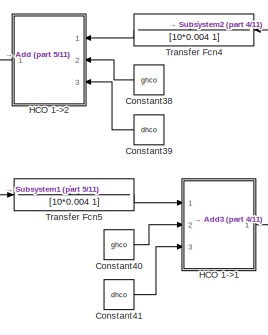
[diagram: root canvas - part 1/11, top center region]
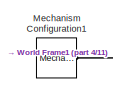
[diagram: root canvas - part 2/11, top right region]
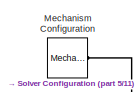
[diagram: root canvas - part 3/11, top left region]
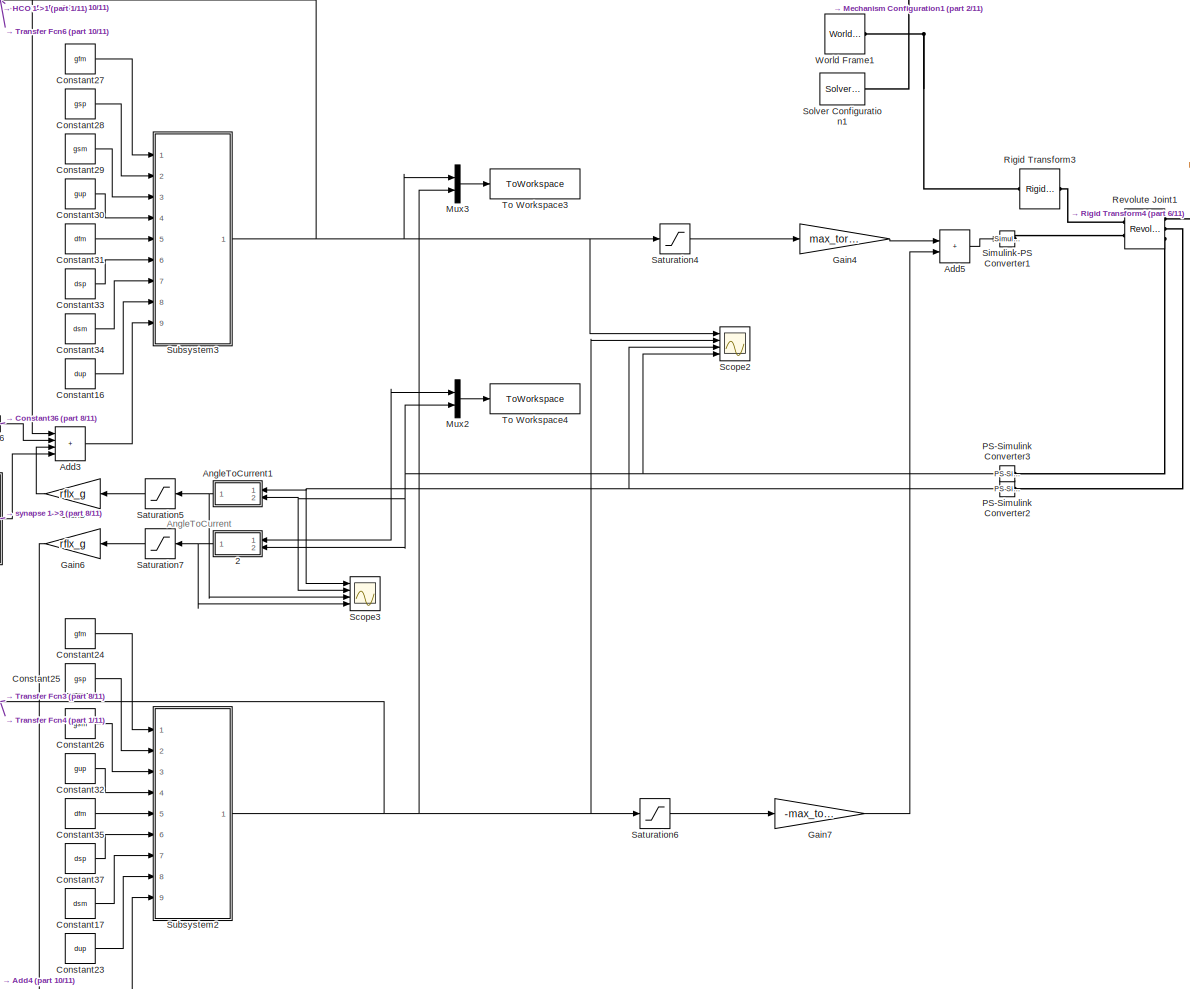
[diagram: root canvas - part 4/11, middle right region]
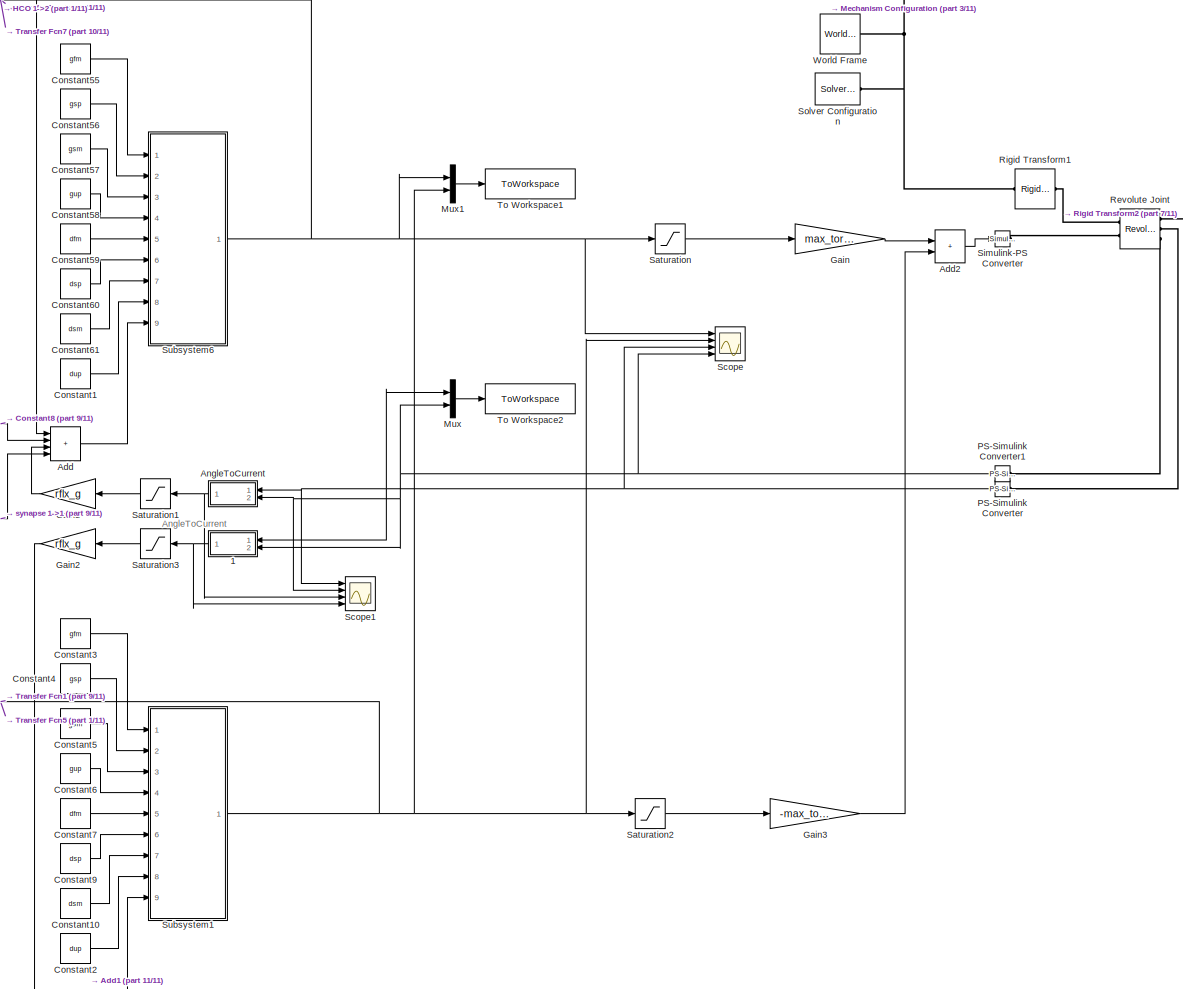
[diagram: root canvas - part 5/11, middle left region]
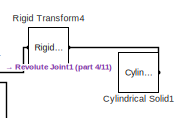
[diagram: root canvas - part 6/11, middle right region]
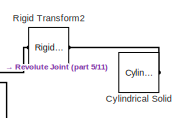
[diagram: root canvas - part 7/11, central region]
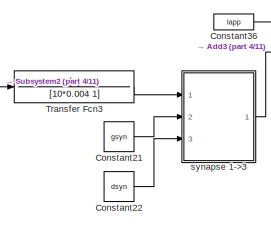
[diagram: root canvas - part 8/11, central region]
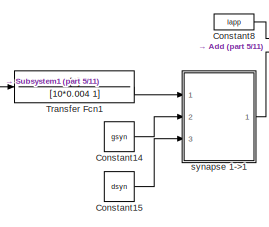
[diagram: root canvas - part 9/11, middle left region]
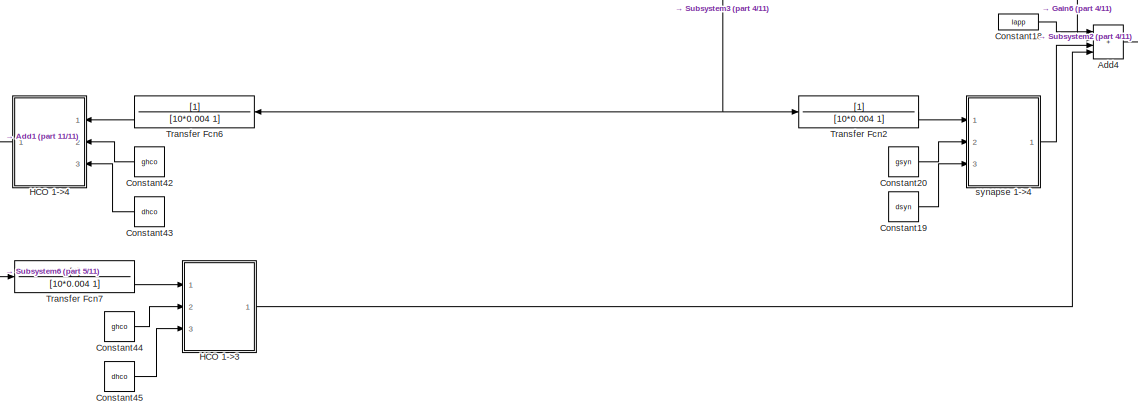
[diagram: root canvas - part 10/11, bottom center region]
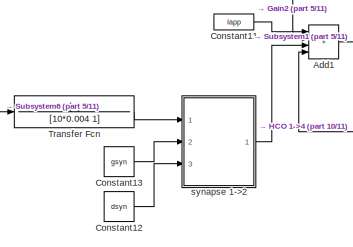
[diagram: root canvas - part 11/11, bottom left region]
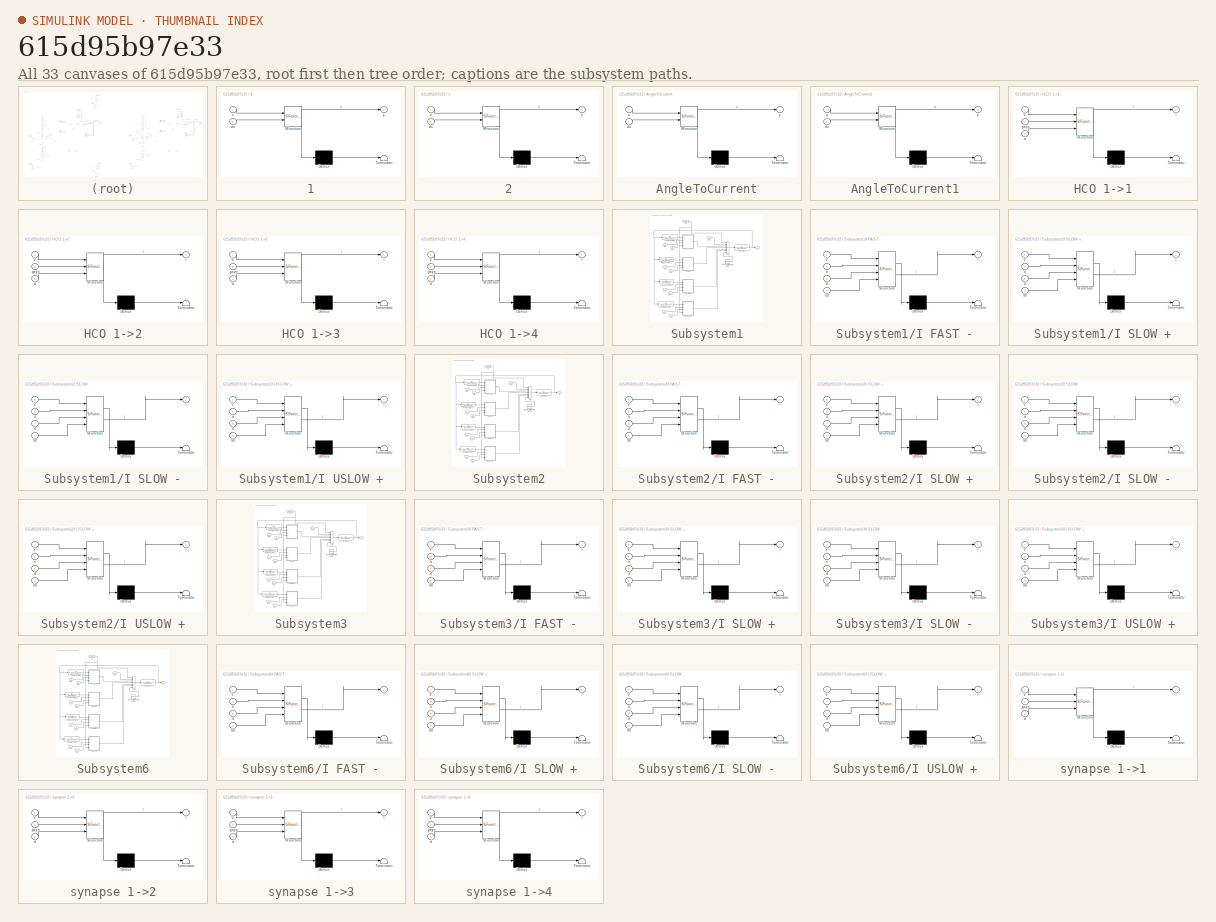
[diagram: thumbnail index - all 33 canvases of the model, root first then tree order]
MODEL slx_615d95b97e33
KIND model
CONFIG AbsTol = auto
CONFIG EnableMultiTasking = off
CONFIG FixedStep = auto
CONFIG MaxStep = auto
CONFIG MinStep = auto
CONFIG RelTol = 1e-3
CONFIG SampleTimeConstraint = Unconstrained
CONFIG SolverName = VariableStepAuto
CONFIG StartTime = 0.0
CONFIG StopTime = 20.0
BLOCK [SubSystem] 1
  ErrorFcn = Stateflow.Translate.translate
  NameLocation = left
  PermitHierarchicalResolution = ExplicitOnly
  Ports = [2, 1]
  RequestExecContextInheritance = off
  SFBlockType = MATLAB Function
  TreatAsAtomicUnit = on
BLOCK [Demux] 1/ Demux 
  Outputs = 1
  Ports = [1, 1]
BLOCK [S-Function] 1/ SFunction 
  EnableBusSupport = on
  FunctionName = sf_sfun
  PortCounts = [2 2]
  Ports = [2, 2]
  SFcnIsStateOwnerBlock = off
  SFunctionDeploymentMode = off
  Tag = Stateflow S-Function 6
BLOCK [Terminator] 1/ Terminator 
BLOCK [Inport] 1/du
  Port = 2
BLOCK [Inport] 1/u
BLOCK [Outport] 1/y
BLOCK [SubSystem] 2
  ErrorFcn = Stateflow.Translate.translate
  NameLocation = left
  PermitHierarchicalResolution = ExplicitOnly
  Ports = [2, 1]
  RequestExecContextInheritance = off
  SFBlockType = MATLAB Function
  TreatAsAtomicUnit = on
BLOCK [Demux] 2/ Demux 
  Outputs = 1
  Ports = [1, 1]
BLOCK [S-Function] 2/ SFunction 
  EnableBusSupport = on
  FunctionName = sf_sfun
  PortCounts = [2 2]
  Ports = [2, 2]
  SFcnIsStateOwnerBlock = off
  SFunctionDeploymentMode = off
  Tag = Stateflow S-Function 7
BLOCK [Terminator] 2/ Terminator 
BLOCK [Inport] 2/du
  Port = 2
BLOCK [Inport] 2/u
BLOCK [Outport] 2/y
BLOCK [Sum] Add
  IconShape = rectangular
  Inputs = ++++
  Ports = [4, 1]
BLOCK [Sum] Add1
  IconShape = rectangular
  Inputs = ++++
  Ports = [4, 1]
BLOCK [Sum] Add2
  IconShape = rectangular
  Ports = [2, 1]
BLOCK [Sum] Add3
  IconShape = rectangular
  Inputs = ++++
  Ports = [4, 1]
BLOCK [Sum] Add4
  IconShape = rectangular
  Inputs = ++++
  Ports = [4, 1]
BLOCK [Sum] Add5
  IconShape = rectangular
  Ports = [2, 1]
BLOCK [SubSystem] AngleToCurrent
  ErrorFcn = Stateflow.Translate.translate
  NameLocation = top
  PermitHierarchicalResolution = ExplicitOnly
  Ports = [2, 1]
  RequestExecContextInheritance = off
  SFBlockType = MATLAB Function
  TreatAsAtomicUnit = on
BLOCK [Demux] AngleToCurrent/ Demux 
  Outputs = 1
  Ports = [1, 1]
BLOCK [S-Function] AngleToCurrent/ SFunction 
  EnableBusSupport = on
  FunctionName = sf_sfun
  PortCounts = [2 2]
  Ports = [2, 2]
  SFcnIsStateOwnerBlock = off
  SFunctionDeploymentMode = off
  Tag = Stateflow S-Function 11
BLOCK [Terminator] AngleToCurrent/ Terminator 
BLOCK [Inport] AngleToCurrent/du
  Port = 2
BLOCK [Inport] AngleToCurrent/u
BLOCK [Outport] AngleToCurrent/y
BLOCK [SubSystem] AngleToCurrent1
  ErrorFcn = Stateflow.Translate.translate
  NameLocation = top
  PermitHierarchicalResolution = ExplicitOnly
  Ports = [2, 1]
  RequestExecContextInheritance = off
  SFBlockType = MATLAB Function
  TreatAsAtomicUnit = on
BLOCK [Demux] AngleToCurrent1/ Demux 
  Outputs = 1
  Ports = [1, 1]
BLOCK [S-Function] AngleToCurrent1/ SFunction 
  EnableBusSupport = on
  FunctionName = sf_sfun
  PortCounts = [2 2]
  Ports = [2, 2]
  SFcnIsStateOwnerBlock = off
  SFunctionDeploymentMode = off
  Tag = Stateflow S-Function 8
BLOCK [Terminator] AngleToCurrent1/ Terminator 
BLOCK [Inport] AngleToCurrent1/du
  Port = 2
BLOCK [Inport] AngleToCurrent1/u
BLOCK [Outport] AngleToCurrent1/y
BLOCK [Constant] Constant1
  Value = dup
BLOCK [Constant] Constant10
  Value = dsm
BLOCK [Constant] Constant11
  Value = Iapp
BLOCK [Constant] Constant12
  Value = dsyn
BLOCK [Constant] Constant13
  Value = gsyn
BLOCK [Constant] Constant14
  Value = gsyn
BLOCK [Constant] Constant15
  Value = dsyn
BLOCK [Constant] Constant16
  Value = dup
BLOCK [Constant] Constant17
  Value = dsm
BLOCK [Constant] Constant18
  Value = Iapp
BLOCK [Constant] Constant19
  Value = dsyn
BLOCK [Constant] Constant2
  Value = dup
BLOCK [Constant] Constant20
  Value = gsyn
BLOCK [Constant] Constant21
  Value = gsyn
BLOCK [Constant] Constant22
  Value = dsyn
BLOCK [Constant] Constant23
  Value = dup
BLOCK [Constant] Constant24
  Value = gfm
BLOCK [Constant] Constant25
  Value = gsp
BLOCK [Constant] Constant26
  Value = gsm
BLOCK [Constant] Constant27
  Value = gfm
BLOCK [Constant] Constant28
  Value = gsp
BLOCK [Constant] Constant29
  Value = gsm
BLOCK [Constant] Constant3
  Value = gfm
BLOCK [Constant] Constant30
  Value = gup
BLOCK [Constant] Constant31
  Value = dfm
BLOCK [Constant] Constant32
  Value = gup
BLOCK [Constant] Constant33
  Value = dsp
BLOCK [Constant] Constant34
  Value = dsm
BLOCK [Constant] Constant35
  Value = dfm
BLOCK [Constant] Constant36
  Value = Iapp
BLOCK [Constant] Constant37
  Value = dsp
BLOCK [Constant] Constant38
  Value = ghco
BLOCK [Constant] Constant39
  Value = dhco
BLOCK [Constant] Constant4
  Value = gsp
BLOCK [Constant] Constant40
  Value = ghco
BLOCK [Constant] Constant41
  Value = dhco
BLOCK [Constant] Constant42
  Value = ghco
BLOCK [Constant] Constant43
  Value = dhco
BLOCK [Constant] Constant44
  Value = ghco
BLOCK [Constant] Constant45
  Value = dhco
BLOCK [Constant] Constant5
  Value = gsm
BLOCK [Constant] Constant55
  Value = gfm
BLOCK [Constant] Constant56
  Value = gsp
BLOCK [Constant] Constant57
  Value = gsm
BLOCK [Constant] Constant58
  Value = gup
BLOCK [Constant] Constant59
  Value = dfm
BLOCK [Constant] Constant6
  Value = gup
BLOCK [Constant] Constant60
  Value = dsp
BLOCK [Constant] Constant61
  Value = dsm
BLOCK [Constant] Constant7
  Value = dfm
BLOCK [Constant] Constant8
  Value = Iapp
BLOCK [Constant] Constant9
  Value = dsp
BLOCK [Reference] Cylindrical Solid  REF=sm_lib/Body Elements/Cylindrical Solid
  Ports = [0, 0, 0, 0, 0, 0, 1]
  SourceBlock = sm_lib/Body Elements/Cylindrical Solid
  SourceProductBaseCode = MS
  SourceType = Cylindrical Solid
BLOCK [Reference] Cylindrical Solid1  REF=sm_lib/Body Elements/Cylindrical Solid
  Ports = [0, 0, 0, 0, 0, 0, 1]
  SourceBlock = sm_lib/Body Elements/Cylindrical Solid
  SourceProductBaseCode = MS
  SourceType = Cylindrical Solid
BLOCK [Gain] Gain
  Gain = max_torque
BLOCK [Gain] Gain1
  Gain = rflx_g
BLOCK [Gain] Gain2
  Gain = rflx_g
BLOCK [Gain] Gain3
  Gain = -max_torque
BLOCK [Gain] Gain4
  Gain = max_torque
BLOCK [Gain] Gain5
  Gain = rflx_g
BLOCK [Gain] Gain6
  Gain = rflx_g
BLOCK [Gain] Gain7
  Gain = -max_torque
BLOCK [SubSystem] HCO 1->1
  ErrorFcn = Stateflow.Translate.translate
  PermitHierarchicalResolution = ExplicitOnly
  Ports = [3, 1]
  RequestExecContextInheritance = off
  SFBlockType = MATLAB Function
  TreatAsAtomicUnit = on
BLOCK [Demux] HCO 1->1/ Demux 
  Outputs = 1
  Ports = [1, 1]
BLOCK [S-Function] HCO 1->1/ SFunction 
  EnableBusSupport = on
  FunctionName = sf_sfun
  PortCounts = [3 2]
  Ports = [3, 2]
  SFcnIsStateOwnerBlock = off
  SFunctionDeploymentMode = off
  Tag = Stateflow S-Function 22
BLOCK [Terminator] HCO 1->1/ Terminator 
BLOCK [Outport] HCO 1->1/I
BLOCK [Inport] HCO 1->1/V
BLOCK [Inport] HCO 1->1/d
  Port = 3
BLOCK [Inport] HCO 1->1/gsyn
  Port = 2
BLOCK [SubSystem] HCO 1->2
  ErrorFcn = Stateflow.Translate.translate
  PermitHierarchicalResolution = ExplicitOnly
  Ports = [3, 1]
  RequestExecContextInheritance = off
  SFBlockType = MATLAB Function
  TreatAsAtomicUnit = on
BLOCK [Demux] HCO 1->2/ Demux 
  Outputs = 1
  Ports = [1, 1]
BLOCK [S-Function] HCO 1->2/ SFunction 
  EnableBusSupport = on
  FunctionName = sf_sfun
  PortCounts = [3 2]
  Ports = [3, 2]
  SFcnIsStateOwnerBlock = off
  SFunctionDeploymentMode = off
  Tag = Stateflow S-Function 21
BLOCK [Terminator] HCO 1->2/ Terminator 
BLOCK [Outport] HCO 1->2/I
BLOCK [Inport] HCO 1->2/V
BLOCK [Inport] HCO 1->2/d
  Port = 3
BLOCK [Inport] HCO 1->2/gsyn
  Port = 2
BLOCK [SubSystem] HCO 1->3
  ErrorFcn = Stateflow.Translate.translate
  PermitHierarchicalResolution = ExplicitOnly
  Ports = [3, 1]
  RequestExecContextInheritance = off
  SFBlockType = MATLAB Function
  TreatAsAtomicUnit = on
BLOCK [Demux] HCO 1->3/ Demux 
  Outputs = 1
  Ports = [1, 1]
BLOCK [S-Function] HCO 1->3/ SFunction 
  EnableBusSupport = on
  FunctionName = sf_sfun
  PortCounts = [3 2]
  Ports = [3, 2]
  SFcnIsStateOwnerBlock = off
  SFunctionDeploymentMode = off
  Tag = Stateflow S-Function 23
BLOCK [Terminator] HCO 1->3/ Terminator 
BLOCK [Outport] HCO 1->3/I
BLOCK [Inport] HCO 1->3/V
BLOCK [Inport] HCO 1->3/d
  Port = 3
BLOCK [Inport] HCO 1->3/gsyn
  Port = 2
BLOCK [SubSystem] HCO 1->4
  ErrorFcn = Stateflow.Translate.translate
  PermitHierarchicalResolution = ExplicitOnly
  Ports = [3, 1]
  RequestExecContextInheritance = off
  SFBlockType = MATLAB Function
  TreatAsAtomicUnit = on
BLOCK [Demux] HCO 1->4/ Demux 
  Outputs = 1
  Ports = [1, 1]
BLOCK [S-Function] HCO 1->4/ SFunction 
  EnableBusSupport = on
  FunctionName = sf_sfun
  PortCounts = [3 2]
  Ports = [3, 2]
  SFcnIsStateOwnerBlock = off
  SFunctionDeploymentMode = off
  Tag = Stateflow S-Function 24
BLOCK [Terminator] HCO 1->4/ Terminator 
BLOCK [Outport] HCO 1->4/I
BLOCK [Inport] HCO 1->4/V
BLOCK [Inport] HCO 1->4/d
  Port = 3
BLOCK [Inport] HCO 1->4/gsyn
  Port = 2
BLOCK [Reference] Mechanism Configuration  REF=sm_lib/Utilities/Mechanism
Configuration
  Ports = [0, 0, 0, 0, 0, 0, 1]
  SourceBlock = sm_lib/Utilities/Mechanism\nConfiguration
  SourceProductBaseCode = MS
  SourceType = Mechanism\nConfiguration
BLOCK [Reference] Mechanism Configuration1  REF=sm_lib/Utilities/Mechanism
Configuration
  Ports = [0, 0, 0, 0, 0, 0, 1]
  SourceBlock = sm_lib/Utilities/Mechanism\nConfiguration
  SourceProductBaseCode = MS
  SourceType = Mechanism\nConfiguration
BLOCK [Mux] Mux
  DisplayOption = bar
  Inputs = 2
  Ports = [2, 1]
BLOCK [Mux] Mux1
  DisplayOption = bar
  Inputs = 2
  Ports = [2, 1]
BLOCK [Mux] Mux2
  DisplayOption = bar
  Inputs = 2
  Ports = [2, 1]
BLOCK [Mux] Mux3
  DisplayOption = bar
  Inputs = 2
  Ports = [2, 1]
BLOCK [Reference] PS-Simulink Converter  REF=nesl_utility/PS-Simulink
Converter
  NameLocation = top
  Ports = [0, 1, 0, 0, 0, 1]
  SourceBlock = nesl_utility/PS-Simulink\nConverter
  SourceProductBaseCode = SS,PW,VE
  SourceType = PS-Simulink\nConverter
BLOCK [Reference] PS-Simulink Converter1  REF=nesl_utility/PS-Simulink
Converter
  NameLocation = top
  Ports = [0, 1, 0, 0, 0, 1]
  SourceBlock = nesl_utility/PS-Simulink\nConverter
  SourceProductBaseCode = SS,PW,VE
  SourceType = PS-Simulink\nConverter
BLOCK [Reference] PS-Simulink Converter2  REF=nesl_utility/PS-Simulink
Converter
  NameLocation = top
  Ports = [0, 1, 0, 0, 0, 1]
  SourceBlock = nesl_utility/PS-Simulink\nConverter
  SourceProductBaseCode = SS,PW,VE
  SourceType = PS-Simulink\nConverter
BLOCK [Reference] PS-Simulink Converter3  REF=nesl_utility/PS-Simulink
Converter
  NameLocation = top
  Ports = [0, 1, 0, 0, 0, 1]
  SourceBlock = nesl_utility/PS-Simulink\nConverter
  SourceProductBaseCode = SS,PW,VE
  SourceType = PS-Simulink\nConverter
BLOCK [Reference] Revolute Joint  REF=sm_lib/Joints/Revolute Joint
  Ports = [0, 0, 0, 0, 0, 2, 3]
  SourceBlock = sm_lib/Joints/Revolute Joint
  SourceProductBaseCode = MS
  SourceType = Revolute Joint
BLOCK [Reference] Revolute Joint1  REF=sm_lib/Joints/Revolute Joint
  Ports = [0, 0, 0, 0, 0, 2, 3]
  SourceBlock = sm_lib/Joints/Revolute Joint
  SourceProductBaseCode = MS
  SourceType = Revolute Joint
BLOCK [Reference] Rigid Transform1  REF=sm_lib/Frames and
Transforms/Rigid
Transform
  Ports = [0, 0, 0, 0, 0, 1, 1]
  SourceBlock = sm_lib/Frames and\nTransforms/Rigid\nTransform
  SourceProductBaseCode = MS
  SourceType = Rigid\nTransform
BLOCK [Reference] Rigid Transform2  REF=sm_lib/Frames and
Transforms/Rigid
Transform
  Ports = [0, 0, 0, 0, 0, 1, 1]
  SourceBlock = sm_lib/Frames and\nTransforms/Rigid\nTransform
  SourceProductBaseCode = MS
  SourceType = Rigid\nTransform
BLOCK [Reference] Rigid Transform3  REF=sm_lib/Frames and
Transforms/Rigid
Transform
  Ports = [0, 0, 0, 0, 0, 1, 1]
  SourceBlock = sm_lib/Frames and\nTransforms/Rigid\nTransform
  SourceProductBaseCode = MS
  SourceType = Rigid\nTransform
BLOCK [Reference] Rigid Transform4  REF=sm_lib/Frames and
Transforms/Rigid
Transform
  Ports = [0, 0, 0, 0, 0, 1, 1]
  SourceBlock = sm_lib/Frames and\nTransforms/Rigid\nTransform
  SourceProductBaseCode = MS
  SourceType = Rigid\nTransform
BLOCK [Saturate] Saturation
  LowerLimit = 0.0
  UpperLimit = 1.0
BLOCK [Saturate] Saturation1
  LowerLimit = 0.0
  NameLocation = top
  UpperLimit = 1.0
BLOCK [Saturate] Saturation2
  LowerLimit = 0.0
  UpperLimit = 1.0
BLOCK [Saturate] Saturation3
  LowerLimit = 0.0
  NameLocation = top
  UpperLimit = 1.0
BLOCK [Saturate] Saturation4
  LowerLimit = 0.0
  UpperLimit = 1.0
BLOCK [Saturate] Saturation5
  LowerLimit = 0.0
  NameLocation = top
  UpperLimit = 1.0
BLOCK [Saturate] Saturation6
  LowerLimit = 0.0
  UpperLimit = 1.0
BLOCK [Saturate] Saturation7
  LowerLimit = 0.0
  NameLocation = top
  UpperLimit = 1.0
BLOCK [Scope] Scope
  Floating = off
  NumInputPorts = 4
  Ports = [4]
  ScopeSpecificationString = Simulink.scopes.TimeScopeBlockCfg('CurrentConfiguration', extmgr.ConfigurationSet(extmgr.Configuration('Core','General UI',true),extmgr.Configuration('Core','Source UI',true),extmgr.Configuration('Sources','WiredSimulink',true),extmgr.Configuration('Visuals','Time Domain',true,'SerializedDisplays',{struct('MinYLimReal','-10.32564','MaxYLimReal','6.60491','YLabelReal','','MinYLimMag','0.00000','Max...<+3396ch>
BLOCK [Scope] Scope1
  Floating = off
  NumInputPorts = 4
  Ports = [4]
  ScopeSpecificationString = Simulink.scopes.TimeScopeBlockCfg('CurrentConfiguration', extmgr.ConfigurationSet(extmgr.Configuration('Core','General UI',true),extmgr.Configuration('Core','Source UI',true),extmgr.Configuration('Sources','WiredSimulink',true,'DataLoggingVariableName','ScopeData1'),extmgr.Configuration('Visuals','Time Domain',true,'SerializedDisplays',{struct('MinYLimReal','-1.6922','MaxYLimReal','1.85197','YLabe...<+3422ch>
BLOCK [Scope] Scope2
  Floating = off
  NumInputPorts = 4
  Ports = [4]
  ScopeSpecificationString = Simulink.scopes.TimeScopeBlockCfg('CurrentConfiguration', extmgr.ConfigurationSet(extmgr.Configuration('Core','General UI',true),extmgr.Configuration('Core','Source UI',true),extmgr.Configuration('Sources','WiredSimulink',true,'DataLoggingVariableName','ScopeData1'),extmgr.Configuration('Visuals','Time Domain',true,'SerializedDisplays',{struct('MinYLimReal','-10.32564','MaxYLimReal','6.60491','YLa...<+3435ch>
BLOCK [Scope] Scope3
  Floating = off
  NumInputPorts = 4
  Ports = [4]
  ScopeSpecificationString = Simulink.scopes.TimeScopeBlockCfg('CurrentConfiguration', extmgr.ConfigurationSet(extmgr.Configuration('Core','General UI',true),extmgr.Configuration('Core','Source UI',true),extmgr.Configuration('Sources','WiredSimulink',true,'DataLoggingVariableName','ScopeData2'),extmgr.Configuration('Visuals','Time Domain',true,'SerializedDisplays',{struct('MinYLimReal','-1.6922','MaxYLimReal','1.85197','YLabe...<+3422ch>
BLOCK [Reference] Simulink-PS Converter  REF=nesl_utility/Simulink-PS
Converter
  Ports = [1, 0, 0, 0, 0, 0, 1]
  SourceBlock = nesl_utility/Simulink-PS\nConverter
  SourceProductBaseCode = SS,PW,VE
  SourceType = Simulink-PS\nConverter
BLOCK [Reference] Simulink-PS Converter1  REF=nesl_utility/Simulink-PS
Converter
  Ports = [1, 0, 0, 0, 0, 0, 1]
  SourceBlock = nesl_utility/Simulink-PS\nConverter
  SourceProductBaseCode = SS,PW,VE
  SourceType = Simulink-PS\nConverter
BLOCK [Reference] Solver Configuration  REF=nesl_utility/Solver
Configuration
  Ports = [0, 0, 0, 0, 0, 0, 1]
  SourceBlock = nesl_utility/Solver\nConfiguration
  SourceProductBaseCode = SS,PW,VE
  SourceType = Solver\nConfiguration
BLOCK [Reference] Solver Configuration1  REF=nesl_utility/Solver
Configuration
  Ports = [0, 0, 0, 0, 0, 0, 1]
  SourceBlock = nesl_utility/Solver\nConfiguration
  SourceProductBaseCode = SS,PW,VE
  SourceType = Solver\nConfiguration
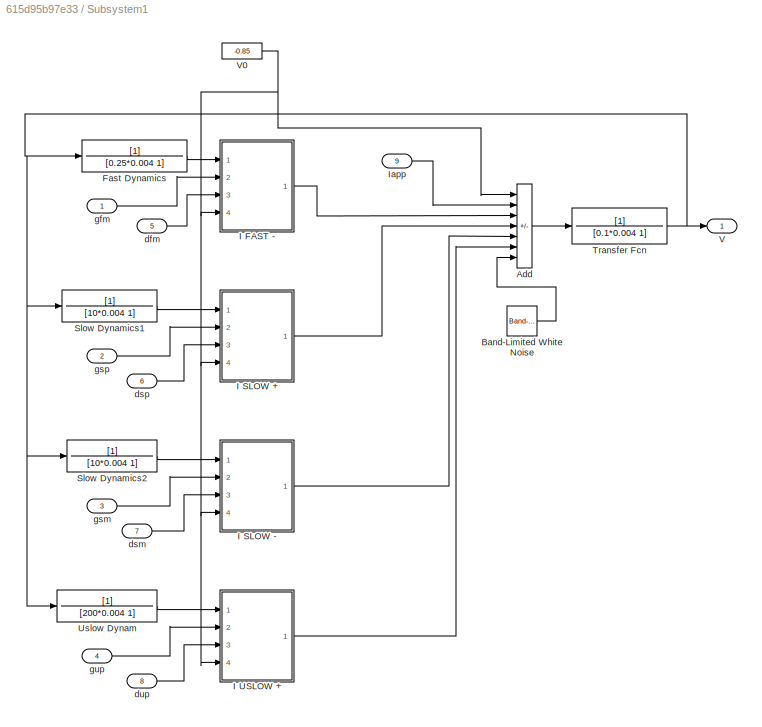
BLOCK [SubSystem] Subsystem1
  Ports = [9, 1]
  RequestExecContextInheritance = off
BLOCK [Sum] Subsystem1/Add
  IconShape = rectangular
  Inputs = ++----+
  Ports = [7, 1]
BLOCK [Reference] Subsystem1/Band-Limited White Noise  REF=simulink/Sources/Band-Limited
White Noise
  Ports = [0, 1]
  SourceBlock = simulink/Sources/Band-Limited\nWhite Noise
  SourceProductBaseCode = SL
  SourceType = Band-Limited White Noise.
BLOCK [TransferFcn] Subsystem1/Fast Dynamics
  Denominator = [0.25*0.004 1]
BLOCK [SubSystem] Subsystem1/I FAST -
  ErrorFcn = Stateflow.Translate.translate
  PermitHierarchicalResolution = ExplicitOnly
  Ports = [4, 1]
  RequestExecContextInheritance = off
  SFBlockType = MATLAB Function
  TreatAsAtomicUnit = on
BLOCK [Demux] Subsystem1/I FAST -/ Demux 
  Outputs = 1
  Ports = [1, 1]
BLOCK [S-Function] Subsystem1/I FAST -/ SFunction 
  EnableBusSupport = on
  FunctionName = sf_sfun
  PortCounts = [4 2]
  Ports = [4, 2]
  SFcnIsStateOwnerBlock = off
  SFunctionDeploymentMode = off
  Tag = Stateflow S-Function 1
BLOCK [Terminator] Subsystem1/I FAST -/ Terminator 
BLOCK [Outport] Subsystem1/I FAST -/I
BLOCK [Inport] Subsystem1/I FAST -/V
BLOCK [Inport] Subsystem1/I FAST -/V0
  Port = 4
BLOCK [Inport] Subsystem1/I FAST -/a
  Port = 2
BLOCK [Inport] Subsystem1/I FAST -/d
  Port = 3
BLOCK [SubSystem] Subsystem1/I SLOW +
  ErrorFcn = Stateflow.Translate.translate
  PermitHierarchicalResolution = ExplicitOnly
  Ports = [4, 1]
  RequestExecContextInheritance = off
  SFBlockType = MATLAB Function
  TreatAsAtomicUnit = on
BLOCK [Demux] Subsystem1/I SLOW +/ Demux 
  Outputs = 1
  Ports = [1, 1]
BLOCK [S-Function] Subsystem1/I SLOW +/ SFunction 
  EnableBusSupport = on
  FunctionName = sf_sfun
  PortCounts = [4 2]
  Ports = [4, 2]
  SFcnIsStateOwnerBlock = off
  SFunctionDeploymentMode = off
  Tag = Stateflow S-Function 2
BLOCK [Terminator] Subsystem1/I SLOW +/ Terminator 
BLOCK [Outport] Subsystem1/I SLOW +/I
BLOCK [Inport] Subsystem1/I SLOW +/V
BLOCK [Inport] Subsystem1/I SLOW +/V0
  Port = 4
BLOCK [Inport] Subsystem1/I SLOW +/a
  Port = 2
BLOCK [Inport] Subsystem1/I SLOW +/d
  Port = 3
BLOCK [SubSystem] Subsystem1/I SLOW -
  ErrorFcn = Stateflow.Translate.translate
  PermitHierarchicalResolution = ExplicitOnly
  Ports = [4, 1]
  RequestExecContextInheritance = off
  SFBlockType = MATLAB Function
  TreatAsAtomicUnit = on
BLOCK [Demux] Subsystem1/I SLOW -/ Demux 
  Outputs = 1
  Ports = [1, 1]
BLOCK [S-Function] Subsystem1/I SLOW -/ SFunction 
  EnableBusSupport = on
  FunctionName = sf_sfun
  PortCounts = [4 2]
  Ports = [4, 2]
  SFcnIsStateOwnerBlock = off
  SFunctionDeploymentMode = off
  Tag = Stateflow S-Function 3
BLOCK [Terminator] Subsystem1/I SLOW -/ Terminator 
BLOCK [Outport] Subsystem1/I SLOW -/I
BLOCK [Inport] Subsystem1/I SLOW -/V
BLOCK [Inport] Subsystem1/I SLOW -/V0
  Port = 4
BLOCK [Inport] Subsystem1/I SLOW -/a
  Port = 2
BLOCK [Inport] Subsystem1/I SLOW -/d
  Port = 3
BLOCK [SubSystem] Subsystem1/I USLOW +
  ErrorFcn = Stateflow.Translate.translate
  PermitHierarchicalResolution = ExplicitOnly
  Ports = [4, 1]
  RequestExecContextInheritance = off
  SFBlockType = MATLAB Function
  TreatAsAtomicUnit = on
BLOCK [Demux] Subsystem1/I USLOW +/ Demux 
  Outputs = 1
  Ports = [1, 1]
BLOCK [S-Function] Subsystem1/I USLOW +/ SFunction 
  EnableBusSupport = on
  FunctionName = sf_sfun
  PortCounts = [4 2]
  Ports = [4, 2]
  SFcnIsStateOwnerBlock = off
  SFunctionDeploymentMode = off
  Tag = Stateflow S-Function 4
BLOCK [Terminator] Subsystem1/I USLOW +/ Terminator 
BLOCK [Outport] Subsystem1/I USLOW +/I
BLOCK [Inport] Subsystem1/I USLOW +/V
BLOCK [Inport] Subsystem1/I USLOW +/V0
  Port = 4
BLOCK [Inport] Subsystem1/I USLOW +/a
  Port = 2
BLOCK [Inport] Subsystem1/I USLOW +/d
  Port = 3
BLOCK [Inport] Subsystem1/Iapp
  Port = 9
BLOCK [TransferFcn] Subsystem1/Slow Dynamics1
  Denominator = [10*0.004 1]
BLOCK [TransferFcn] Subsystem1/Slow Dynamics2
  Denominator = [10*0.004 1]
BLOCK [TransferFcn] Subsystem1/Transfer Fcn
  Denominator = [0.1*0.004 1]
BLOCK [TransferFcn] Subsystem1/Uslow Dynam
  Denominator = [200*0.004 1]
BLOCK [Outport] Subsystem1/V
BLOCK [Constant] Subsystem1/V0
  Value = -0.85
BLOCK [Inport] Subsystem1/dfm
  Port = 5
BLOCK [Inport] Subsystem1/dsm
  Port = 7
BLOCK [Inport] Subsystem1/dsp
  Port = 6
BLOCK [Inport] Subsystem1/dup
  Port = 8
BLOCK [Inport] Subsystem1/gfm
BLOCK [Inport] Subsystem1/gsm
  Port = 3
BLOCK [Inport] Subsystem1/gsp
  Port = 2
BLOCK [Inport] Subsystem1/gup
  Port = 4
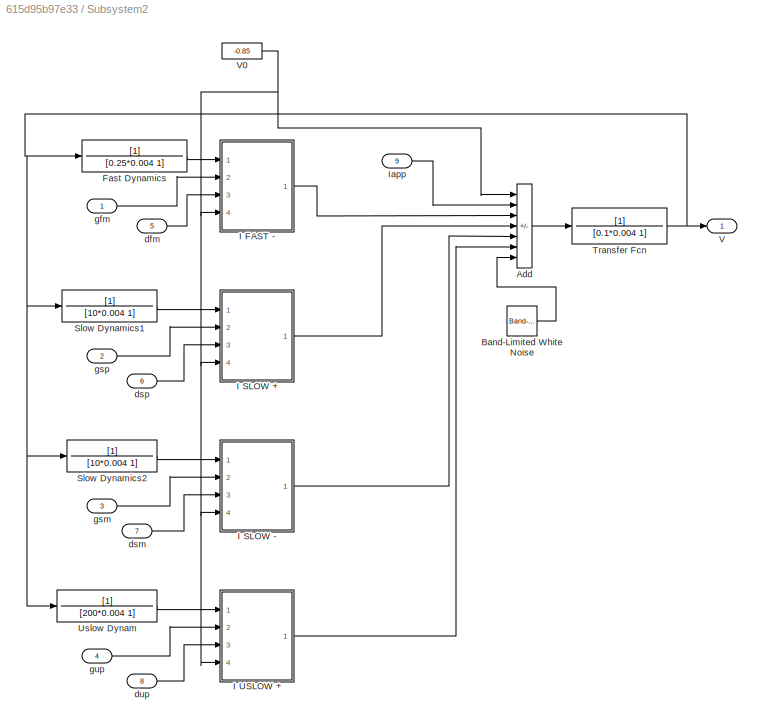
BLOCK [SubSystem] Subsystem2
  Ports = [9, 1]
  RequestExecContextInheritance = off
BLOCK [Sum] Subsystem2/Add
  IconShape = rectangular
  Inputs = ++----+
  Ports = [7, 1]
BLOCK [Reference] Subsystem2/Band-Limited White Noise  REF=simulink/Sources/Band-Limited
White Noise
  Ports = [0, 1]
  SourceBlock = simulink/Sources/Band-Limited\nWhite Noise
  SourceProductBaseCode = SL
  SourceType = Band-Limited White Noise.
BLOCK [TransferFcn] Subsystem2/Fast Dynamics
  Denominator = [0.25*0.004 1]
BLOCK [SubSystem] Subsystem2/I FAST -
  ErrorFcn = Stateflow.Translate.translate
  PermitHierarchicalResolution = ExplicitOnly
  Ports = [4, 1]
  RequestExecContextInheritance = off
  SFBlockType = MATLAB Function
  TreatAsAtomicUnit = on
BLOCK [Demux] Subsystem2/I FAST -/ Demux 
  Outputs = 1
  Ports = [1, 1]
BLOCK [S-Function] Subsystem2/I FAST -/ SFunction 
  EnableBusSupport = on
  FunctionName = sf_sfun
  PortCounts = [4 2]
  Ports = [4, 2]
  SFcnIsStateOwnerBlock = off
  SFunctionDeploymentMode = off
  Tag = Stateflow S-Function 9
BLOCK [Terminator] Subsystem2/I FAST -/ Terminator 
BLOCK [Outport] Subsystem2/I FAST -/I
BLOCK [Inport] Subsystem2/I FAST -/V
BLOCK [Inport] Subsystem2/I FAST -/V0
  Port = 4
BLOCK [Inport] Subsystem2/I FAST -/a
  Port = 2
BLOCK [Inport] Subsystem2/I FAST -/d
  Port = 3
BLOCK [SubSystem] Subsystem2/I SLOW +
  ErrorFcn = Stateflow.Translate.translate
  PermitHierarchicalResolution = ExplicitOnly
  Ports = [4, 1]
  RequestExecContextInheritance = off
  SFBlockType = MATLAB Function
  TreatAsAtomicUnit = on
BLOCK [Demux] Subsystem2/I SLOW +/ Demux 
  Outputs = 1
  Ports = [1, 1]
BLOCK [S-Function] Subsystem2/I SLOW +/ SFunction 
  EnableBusSupport = on
  FunctionName = sf_sfun
  PortCounts = [4 2]
  Ports = [4, 2]
  SFcnIsStateOwnerBlock = off
  SFunctionDeploymentMode = off
  Tag = Stateflow S-Function 10
BLOCK [Terminator] Subsystem2/I SLOW +/ Terminator 
BLOCK [Outport] Subsystem2/I SLOW +/I
BLOCK [Inport] Subsystem2/I SLOW +/V
BLOCK [Inport] Subsystem2/I SLOW +/V0
  Port = 4
BLOCK [Inport] Subsystem2/I SLOW +/a
  Port = 2
BLOCK [Inport] Subsystem2/I SLOW +/d
  Port = 3
BLOCK [SubSystem] Subsystem2/I SLOW -
  ErrorFcn = Stateflow.Translate.translate
  PermitHierarchicalResolution = ExplicitOnly
  Ports = [4, 1]
  RequestExecContextInheritance = off
  SFBlockType = MATLAB Function
  TreatAsAtomicUnit = on
BLOCK [Demux] Subsystem2/I SLOW -/ Demux 
  Outputs = 1
  Ports = [1, 1]
BLOCK [S-Function] Subsystem2/I SLOW -/ SFunction 
  EnableBusSupport = on
  FunctionName = sf_sfun
  PortCounts = [4 2]
  Ports = [4, 2]
  SFcnIsStateOwnerBlock = off
  SFunctionDeploymentMode = off
  Tag = Stateflow S-Function 12
BLOCK [Terminator] Subsystem2/I SLOW -/ Terminator 
BLOCK [Outport] Subsystem2/I SLOW -/I
BLOCK [Inport] Subsystem2/I SLOW -/V
BLOCK [Inport] Subsystem2/I SLOW -/V0
  Port = 4
BLOCK [Inport] Subsystem2/I SLOW -/a
  Port = 2
BLOCK [Inport] Subsystem2/I SLOW -/d
  Port = 3
BLOCK [SubSystem] Subsystem2/I USLOW +
  ErrorFcn = Stateflow.Translate.translate
  PermitHierarchicalResolution = ExplicitOnly
  Ports = [4, 1]
  RequestExecContextInheritance = off
  SFBlockType = MATLAB Function
  TreatAsAtomicUnit = on
BLOCK [Demux] Subsystem2/I USLOW +/ Demux 
  Outputs = 1
  Ports = [1, 1]
BLOCK [S-Function] Subsystem2/I USLOW +/ SFunction 
  EnableBusSupport = on
  FunctionName = sf_sfun
  PortCounts = [4 2]
  Ports = [4, 2]
  SFcnIsStateOwnerBlock = off
  SFunctionDeploymentMode = off
  Tag = Stateflow S-Function 14
BLOCK [Terminator] Subsystem2/I USLOW +/ Terminator 
BLOCK [Outport] Subsystem2/I USLOW +/I
BLOCK [Inport] Subsystem2/I USLOW +/V
BLOCK [Inport] Subsystem2/I USLOW +/V0
  Port = 4
BLOCK [Inport] Subsystem2/I USLOW +/a
  Port = 2
BLOCK [Inport] Subsystem2/I USLOW +/d
  Port = 3
BLOCK [Inport] Subsystem2/Iapp
  Port = 9
BLOCK [TransferFcn] Subsystem2/Slow Dynamics1
  Denominator = [10*0.004 1]
BLOCK [TransferFcn] Subsystem2/Slow Dynamics2
  Denominator = [10*0.004 1]
BLOCK [TransferFcn] Subsystem2/Transfer Fcn
  Denominator = [0.1*0.004 1]
BLOCK [TransferFcn] Subsystem2/Uslow Dynam
  Denominator = [200*0.004 1]
BLOCK [Outport] Subsystem2/V
BLOCK [Constant] Subsystem2/V0
  Value = -0.85
BLOCK [Inport] Subsystem2/dfm
  Port = 5
BLOCK [Inport] Subsystem2/dsm
  Port = 7
BLOCK [Inport] Subsystem2/dsp
  Port = 6
BLOCK [Inport] Subsystem2/dup
  Port = 8
BLOCK [Inport] Subsystem2/gfm
BLOCK [Inport] Subsystem2/gsm
  Port = 3
BLOCK [Inport] Subsystem2/gsp
  Port = 2
BLOCK [Inport] Subsystem2/gup
  Port = 4
BLOCK [SubSystem] Subsystem3
  Ports = [9, 1]
  RequestExecContextInheritance = off
BLOCK [Sum] Subsystem3/Add
  IconShape = rectangular
  Inputs = ++----+
  Ports = [7, 1]
BLOCK [Reference] Subsystem3/Band-Limited White Noise  REF=simulink/Sources/Band-Limited
White Noise
  Ports = [0, 1]
  SourceBlock = simulink/Sources/Band-Limited\nWhite Noise
  SourceProductBaseCode = SL
  SourceType = Band-Limited White Noise.
BLOCK [TransferFcn] Subsystem3/Fast Dynamics
  Denominator = [0.25*0.004 1]
BLOCK [SubSystem] Subsystem3/I FAST -
  ErrorFcn = Stateflow.Translate.translate
  PermitHierarchicalResolution = ExplicitOnly
  Ports = [4, 1]
  RequestExecContextInheritance = off
  SFBlockType = MATLAB Function
  TreatAsAtomicUnit = on
BLOCK [Demux] Subsystem3/I FAST -/ Demux 
  Outputs = 1
  Ports = [1, 1]
BLOCK [S-Function] Subsystem3/I FAST -/ SFunction 
  EnableBusSupport = on
  FunctionName = sf_sfun
  PortCounts = [4 2]
  Ports = [4, 2]
  SFcnIsStateOwnerBlock = off
  SFunctionDeploymentMode = off
  Tag = Stateflow S-Function 15
BLOCK [Terminator] Subsystem3/I FAST -/ Terminator 
BLOCK [Outport] Subsystem3/I FAST -/I
BLOCK [Inport] Subsystem3/I FAST -/V
BLOCK [Inport] Subsystem3/I FAST -/V0
  Port = 4
BLOCK [Inport] Subsystem3/I FAST -/a
  Port = 2
BLOCK [Inport] Subsystem3/I FAST -/d
  Port = 3
BLOCK [SubSystem] Subsystem3/I SLOW +
  ErrorFcn = Stateflow.Translate.translate
  PermitHierarchicalResolution = ExplicitOnly
  Ports = [4, 1]
  RequestExecContextInheritance = off
  SFBlockType = MATLAB Function
  TreatAsAtomicUnit = on
BLOCK [Demux] Subsystem3/I SLOW +/ Demux 
  Outputs = 1
  Ports = [1, 1]
BLOCK [S-Function] Subsystem3/I SLOW +/ SFunction 
  EnableBusSupport = on
  FunctionName = sf_sfun
  PortCounts = [4 2]
  Ports = [4, 2]
  SFcnIsStateOwnerBlock = off
  SFunctionDeploymentMode = off
  Tag = Stateflow S-Function 16
BLOCK [Terminator] Subsystem3/I SLOW +/ Terminator 
BLOCK [Outport] Subsystem3/I SLOW +/I
BLOCK [Inport] Subsystem3/I SLOW +/V
BLOCK [Inport] Subsystem3/I SLOW +/V0
  Port = 4
BLOCK [Inport] Subsystem3/I SLOW +/a
  Port = 2
BLOCK [Inport] Subsystem3/I SLOW +/d
  Port = 3
BLOCK [SubSystem] Subsystem3/I SLOW -
  ErrorFcn = Stateflow.Translate.translate
  PermitHierarchicalResolution = ExplicitOnly
  Ports = [4, 1]
  RequestExecContextInheritance = off
  SFBlockType = MATLAB Function
  TreatAsAtomicUnit = on
BLOCK [Demux] Subsystem3/I SLOW -/ Demux 
  Outputs = 1
  Ports = [1, 1]
BLOCK [S-Function] Subsystem3/I SLOW -/ SFunction 
  EnableBusSupport = on
  FunctionName = sf_sfun
  PortCounts = [4 2]
  Ports = [4, 2]
  SFcnIsStateOwnerBlock = off
  SFunctionDeploymentMode = off
  Tag = Stateflow S-Function 17
BLOCK [Terminator] Subsystem3/I SLOW -/ Terminator 
BLOCK [Outport] Subsystem3/I SLOW -/I
BLOCK [Inport] Subsystem3/I SLOW -/V
BLOCK [Inport] Subsystem3/I SLOW -/V0
  Port = 4
BLOCK [Inport] Subsystem3/I SLOW -/a
  Port = 2
BLOCK [Inport] Subsystem3/I SLOW -/d
  Port = 3
BLOCK [SubSystem] Subsystem3/I USLOW +
  ErrorFcn = Stateflow.Translate.translate
  PermitHierarchicalResolution = ExplicitOnly
  Ports = [4, 1]
  RequestExecContextInheritance = off
  SFBlockType = MATLAB Function
  TreatAsAtomicUnit = on
BLOCK [Demux] Subsystem3/I USLOW +/ Demux 
  Outputs = 1
  Ports = [1, 1]
BLOCK [S-Function] Subsystem3/I USLOW +/ SFunction 
  EnableBusSupport = on
  FunctionName = sf_sfun
  PortCounts = [4 2]
  Ports = [4, 2]
  SFcnIsStateOwnerBlock = off
  SFunctionDeploymentMode = off
  Tag = Stateflow S-Function 18
BLOCK [Terminator] Subsystem3/I USLOW +/ Terminator 
BLOCK [Outport] Subsystem3/I USLOW +/I
BLOCK [Inport] Subsystem3/I USLOW +/V
BLOCK [Inport] Subsystem3/I USLOW +/V0
  Port = 4
BLOCK [Inport] Subsystem3/I USLOW +/a
  Port = 2
BLOCK [Inport] Subsystem3/I USLOW +/d
  Port = 3
BLOCK [Inport] Subsystem3/Iapp
  Port = 9
BLOCK [TransferFcn] Subsystem3/Slow Dynamics1
  Denominator = [10*0.004 1]
BLOCK [TransferFcn] Subsystem3/Slow Dynamics2
  Denominator = [10*0.004 1]
BLOCK [TransferFcn] Subsystem3/Transfer Fcn
  Denominator = [0.1*0.004 1]
BLOCK [TransferFcn] Subsystem3/Uslow Dynam
  Denominator = [200*0.004 1]
BLOCK [Outport] Subsystem3/V
BLOCK [Constant] Subsystem3/V0
  Value = -0.85
BLOCK [Inport] Subsystem3/dfm
  Port = 5
BLOCK [Inport] Subsystem3/dsm
  Port = 7
BLOCK [Inport] Subsystem3/dsp
  Port = 6
BLOCK [Inport] Subsystem3/dup
  Port = 8
BLOCK [Inport] Subsystem3/gfm
BLOCK [Inport] Subsystem3/gsm
  Port = 3
BLOCK [Inport] Subsystem3/gsp
  Port = 2
BLOCK [Inport] Subsystem3/gup
  Port = 4
BLOCK [SubSystem] Subsystem6
  Ports = [9, 1]
  RequestExecContextInheritance = off
BLOCK [Sum] Subsystem6/Add
  IconShape = rectangular
  Inputs = ++----+
  Ports = [7, 1]
BLOCK [Reference] Subsystem6/Band-Limited White Noise  REF=simulink/Sources/Band-Limited
White Noise
  Ports = [0, 1]
  SourceBlock = simulink/Sources/Band-Limited\nWhite Noise
  SourceProductBaseCode = SL
  SourceType = Band-Limited White Noise.
BLOCK [TransferFcn] Subsystem6/Fast Dynamics
  Denominator = [0.25*0.004 1]
BLOCK [SubSystem] Subsystem6/I FAST -
  ErrorFcn = Stateflow.Translate.translate
  PermitHierarchicalResolution = ExplicitOnly
  Ports = [4, 1]
  RequestExecContextInheritance = off
  SFBlockType = MATLAB Function
  TreatAsAtomicUnit = on
BLOCK [Demux] Subsystem6/I FAST -/ Demux 
  Outputs = 1
  Ports = [1, 1]
BLOCK [S-Function] Subsystem6/I FAST -/ SFunction 
  EnableBusSupport = on
  FunctionName = sf_sfun
  PortCounts = [4 2]
  Ports = [4, 2]
  SFcnIsStateOwnerBlock = off
  SFunctionDeploymentMode = off
  Tag = Stateflow S-Function 27
BLOCK [Terminator] Subsystem6/I FAST -/ Terminator 
BLOCK [Outport] Subsystem6/I FAST -/I
BLOCK [Inport] Subsystem6/I FAST -/V
BLOCK [Inport] Subsystem6/I FAST -/V0
  Port = 4
BLOCK [Inport] Subsystem6/I FAST -/a
  Port = 2
BLOCK [Inport] Subsystem6/I FAST -/d
  Port = 3
BLOCK [SubSystem] Subsystem6/I SLOW +
  ErrorFcn = Stateflow.Translate.translate
  PermitHierarchicalResolution = ExplicitOnly
  Ports = [4, 1]
  RequestExecContextInheritance = off
  SFBlockType = MATLAB Function
  TreatAsAtomicUnit = on
BLOCK [Demux] Subsystem6/I SLOW +/ Demux 
  Outputs = 1
  Ports = [1, 1]
BLOCK [S-Function] Subsystem6/I SLOW +/ SFunction 
  EnableBusSupport = on
  FunctionName = sf_sfun
  PortCounts = [4 2]
  Ports = [4, 2]
  SFcnIsStateOwnerBlock = off
  SFunctionDeploymentMode = off
  Tag = Stateflow S-Function 28
BLOCK [Terminator] Subsystem6/I SLOW +/ Terminator 
BLOCK [Outport] Subsystem6/I SLOW +/I
BLOCK [Inport] Subsystem6/I SLOW +/V
BLOCK [Inport] Subsystem6/I SLOW +/V0
  Port = 4
BLOCK [Inport] Subsystem6/I SLOW +/a
  Port = 2
BLOCK [Inport] Subsystem6/I SLOW +/d
  Port = 3
BLOCK [SubSystem] Subsystem6/I SLOW -
  ErrorFcn = Stateflow.Translate.translate
  PermitHierarchicalResolution = ExplicitOnly
  Ports = [4, 1]
  RequestExecContextInheritance = off
  SFBlockType = MATLAB Function
  TreatAsAtomicUnit = on
BLOCK [Demux] Subsystem6/I SLOW -/ Demux 
  Outputs = 1
  Ports = [1, 1]
BLOCK [S-Function] Subsystem6/I SLOW -/ SFunction 
  EnableBusSupport = on
  FunctionName = sf_sfun
  PortCounts = [4 2]
  Ports = [4, 2]
  SFcnIsStateOwnerBlock = off
  SFunctionDeploymentMode = off
  Tag = Stateflow S-Function 29
BLOCK [Terminator] Subsystem6/I SLOW -/ Terminator 
BLOCK [Outport] Subsystem6/I SLOW -/I
BLOCK [Inport] Subsystem6/I SLOW -/V
BLOCK [Inport] Subsystem6/I SLOW -/V0
  Port = 4
BLOCK [Inport] Subsystem6/I SLOW -/a
  Port = 2
BLOCK [Inport] Subsystem6/I SLOW -/d
  Port = 3
BLOCK [SubSystem] Subsystem6/I USLOW +
  ErrorFcn = Stateflow.Translate.translate
  PermitHierarchicalResolution = ExplicitOnly
  Ports = [4, 1]
  RequestExecContextInheritance = off
  SFBlockType = MATLAB Function
  TreatAsAtomicUnit = on
BLOCK [Demux] Subsystem6/I USLOW +/ Demux 
  Outputs = 1
  Ports = [1, 1]
BLOCK [S-Function] Subsystem6/I USLOW +/ SFunction 
  EnableBusSupport = on
  FunctionName = sf_sfun
  PortCounts = [4 2]
  Ports = [4, 2]
  SFcnIsStateOwnerBlock = off
  SFunctionDeploymentMode = off
  Tag = Stateflow S-Function 30
BLOCK [Terminator] Subsystem6/I USLOW +/ Terminator 
BLOCK [Outport] Subsystem6/I USLOW +/I
BLOCK [Inport] Subsystem6/I USLOW +/V
BLOCK [Inport] Subsystem6/I USLOW +/V0
  Port = 4
BLOCK [Inport] Subsystem6/I USLOW +/a
  Port = 2
BLOCK [Inport] Subsystem6/I USLOW +/d
  Port = 3
BLOCK [Inport] Subsystem6/Iapp
  Port = 9
BLOCK [TransferFcn] Subsystem6/Slow Dynamics1
  Denominator = [10*0.004 1]
BLOCK [TransferFcn] Subsystem6/Slow Dynamics2
  Denominator = [10*0.004 1]
BLOCK [TransferFcn] Subsystem6/Transfer Fcn
  Denominator = [0.1*0.004 1]
BLOCK [TransferFcn] Subsystem6/Uslow Dynam
  Denominator = [200*0.004 1]
BLOCK [Outport] Subsystem6/V
BLOCK [Constant] Subsystem6/V0
  Value = -0.85
BLOCK [Inport] Subsystem6/dfm
  Port = 5
BLOCK [Inport] Subsystem6/dsm
  Port = 7
BLOCK [Inport] Subsystem6/dsp
  Port = 6
BLOCK [Inport] Subsystem6/dup
  Port = 8
BLOCK [Inport] Subsystem6/gfm
BLOCK [Inport] Subsystem6/gsm
  Port = 3
BLOCK [Inport] Subsystem6/gsp
  Port = 2
BLOCK [Inport] Subsystem6/gup
  Port = 4
BLOCK [ToWorkspace] To Workspace1
  FixptAsFi = on
  MaxDataPoints = inf
  Ports = [1]
  SampleTime = sampleTime
  SaveFormat = Structure With Time
  VariableName = voltage1
BLOCK [ToWorkspace] To Workspace2
  FixptAsFi = on
  MaxDataPoints = inf
  Ports = [1]
  SampleTime = sampleTime
  SaveFormat = Structure With Time
  VariableName = angle1
BLOCK [ToWorkspace] To Workspace3
  FixptAsFi = on
  MaxDataPoints = inf
  Ports = [1]
  SampleTime = sampleTime
  SaveFormat = Structure With Time
  VariableName = voltage2
BLOCK [ToWorkspace] To Workspace4
  FixptAsFi = on
  MaxDataPoints = inf
  Ports = [1]
  SampleTime = sampleTime
  SaveFormat = Structure With Time
  VariableName = angle2
BLOCK [TransferFcn] Transfer Fcn
  Denominator = [10*0.004 1]
BLOCK [TransferFcn] Transfer Fcn1
  Denominator = [10*0.004 1]
BLOCK [TransferFcn] Transfer Fcn2
  Denominator = [10*0.004 1]
BLOCK [TransferFcn] Transfer Fcn3
  Denominator = [10*0.004 1]
BLOCK [TransferFcn] Transfer Fcn4
  Denominator = [10*0.004 1]
BLOCK [TransferFcn] Transfer Fcn5
  Denominator = [10*0.004 1]
BLOCK [TransferFcn] Transfer Fcn6
  Denominator = [10*0.004 1]
BLOCK [TransferFcn] Transfer Fcn7
  Denominator = [10*0.004 1]
BLOCK [Reference] World Frame  REF=sm_lib/Frames and
Transforms/World Frame
  Ports = [0, 0, 0, 0, 0, 0, 1]
  SourceBlock = sm_lib/Frames and\nTransforms/World Frame
  SourceProductBaseCode = MS
  SourceType = World Frame
BLOCK [Reference] World Frame1  REF=sm_lib/Frames and
Transforms/World Frame
  Ports = [0, 0, 0, 0, 0, 0, 1]
  SourceBlock = sm_lib/Frames and\nTransforms/World Frame
  SourceProductBaseCode = MS
  SourceType = World Frame
BLOCK [SubSystem] synapse 1->1
  ErrorFcn = Stateflow.Translate.translate
  PermitHierarchicalResolution = ExplicitOnly
  Ports = [3, 1]
  RequestExecContextInheritance = off
  SFBlockType = MATLAB Function
  TreatAsAtomicUnit = on
BLOCK [Demux] synapse 1->1/ Demux 
  Outputs = 1
  Ports = [1, 1]
BLOCK [S-Function] synapse 1->1/ SFunction 
  EnableBusSupport = on
  FunctionName = sf_sfun
  PortCounts = [3 2]
  Ports = [3, 2]
  SFcnIsStateOwnerBlock = off
  SFunctionDeploymentMode = off
  Tag = Stateflow S-Function 5
BLOCK [Terminator] synapse 1->1/ Terminator 
BLOCK [Outport] synapse 1->1/I
BLOCK [Inport] synapse 1->1/V
BLOCK [Inport] synapse 1->1/d
  Port = 3
BLOCK [Inport] synapse 1->1/gsyn
  Port = 2
BLOCK [SubSystem] synapse 1->2
  ErrorFcn = Stateflow.Translate.translate
  PermitHierarchicalResolution = ExplicitOnly
  Ports = [3, 1]
  RequestExecContextInheritance = off
  SFBlockType = MATLAB Function
  TreatAsAtomicUnit = on
BLOCK [Demux] synapse 1->2/ Demux 
  Outputs = 1
  Ports = [1, 1]
BLOCK [S-Function] synapse 1->2/ SFunction 
  EnableBusSupport = on
  FunctionName = sf_sfun
  PortCounts = [3 2]
  Ports = [3, 2]
  SFcnIsStateOwnerBlock = off
  SFunctionDeploymentMode = off
  Tag = Stateflow S-Function 13
BLOCK [Terminator] synapse 1->2/ Terminator 
BLOCK [Outport] synapse 1->2/I
BLOCK [Inport] synapse 1->2/V
BLOCK [Inport] synapse 1->2/d
  Port = 3
BLOCK [Inport] synapse 1->2/gsyn
  Port = 2
BLOCK [SubSystem] synapse 1->3
  ErrorFcn = Stateflow.Translate.translate
  PermitHierarchicalResolution = ExplicitOnly
  Ports = [3, 1]
  RequestExecContextInheritance = off
  SFBlockType = MATLAB Function
  TreatAsAtomicUnit = on
BLOCK [Demux] synapse 1->3/ Demux 
  Outputs = 1
  Ports = [1, 1]
BLOCK [S-Function] synapse 1->3/ SFunction 
  EnableBusSupport = on
  FunctionName = sf_sfun
  PortCounts = [3 2]
  Ports = [3, 2]
  SFcnIsStateOwnerBlock = off
  SFunctionDeploymentMode = off
  Tag = Stateflow S-Function 19
BLOCK [Terminator] synapse 1->3/ Terminator 
BLOCK [Outport] synapse 1->3/I
BLOCK [Inport] synapse 1->3/V
BLOCK [Inport] synapse 1->3/d
  Port = 3
BLOCK [Inport] synapse 1->3/gsyn
  Port = 2
BLOCK [SubSystem] synapse 1->4
  ErrorFcn = Stateflow.Translate.translate
  PermitHierarchicalResolution = ExplicitOnly
  Ports = [3, 1]
  RequestExecContextInheritance = off
  SFBlockType = MATLAB Function
  TreatAsAtomicUnit = on
BLOCK [Demux] synapse 1->4/ Demux 
  Outputs = 1
  Ports = [1, 1]
BLOCK [S-Function] synapse 1->4/ SFunction 
  EnableBusSupport = on
  FunctionName = sf_sfun
  PortCounts = [3 2]
  Ports = [3, 2]
  SFcnIsStateOwnerBlock = off
  SFunctionDeploymentMode = off
  Tag = Stateflow S-Function 20
BLOCK [Terminator] synapse 1->4/ Terminator 
BLOCK [Outport] synapse 1->4/I
BLOCK [Inport] synapse 1->4/V
BLOCK [Inport] synapse 1->4/d
  Port = 3
BLOCK [Inport] synapse 1->4/gsyn
  Port = 2
ANNOTATION (root): AngleToCurrent
NET 1:1 -> Saturation3:1, Scope1:4
NET 2:1 -> Saturation7:1, Scope3:4
LINE Add1:1 -> Subsystem1:9
LINE Add2:1 -> Simulink-PS Converter:1
LINE Add3:1 -> Subsystem3:9
LINE Add4:1 -> Subsystem2:9
LINE Add5:1 -> Simulink-PS Converter1:1
LINE Add:1 -> Subsystem6:9
NET AngleToCurrent1:1 -> Saturation5:1, Scope3:3
NET AngleToCurrent:1 -> Saturation1:1, Scope1:3
LINE Constant10:1 -> Subsystem1:7
LINE Constant11:1 -> Add1:1
LINE Constant12:1 -> synapse 1->2:3
LINE Constant13:1 -> synapse 1->2:2
LINE Constant14:1 -> synapse 1->1:2
LINE Constant15:1 -> synapse 1->1:3
LINE Constant16:1 -> Subsystem3:8
LINE Constant17:1 -> Subsystem2:7
LINE Constant18:1 -> Add4:1
LINE Constant19:1 -> synapse 1->4:3
LINE Constant1:1 -> Subsystem6:8
LINE Constant20:1 -> synapse 1->4:2
LINE Constant21:1 -> synapse 1->3:2
LINE Constant22:1 -> synapse 1->3:3
LINE Constant23:1 -> Subsystem2:8
LINE Constant24:1 -> Subsystem2:1
LINE Constant25:1 -> Subsystem2:2
LINE Constant26:1 -> Subsystem2:3
LINE Constant27:1 -> Subsystem3:1
LINE Constant28:1 -> Subsystem3:2
LINE Constant29:1 -> Subsystem3:3
LINE Constant2:1 -> Subsystem1:8
LINE Constant30:1 -> Subsystem3:4
LINE Constant31:1 -> Subsystem3:5
LINE Constant32:1 -> Subsystem2:4
LINE Constant33:1 -> Subsystem3:6
LINE Constant34:1 -> Subsystem3:7
LINE Constant35:1 -> Subsystem2:5
LINE Constant36:1 -> Add3:2
LINE Constant37:1 -> Subsystem2:6
LINE Constant38:1 -> HCO 1->2:2
LINE Constant39:1 -> HCO 1->2:3
LINE Constant3:1 -> Subsystem1:1
LINE Constant40:1 -> HCO 1->1:2
LINE Constant41:1 -> HCO 1->1:3
LINE Constant42:1 -> HCO 1->4:2
LINE Constant43:1 -> HCO 1->4:3
LINE Constant44:1 -> HCO 1->3:2
LINE Constant45:1 -> HCO 1->3:3
LINE Constant4:1 -> Subsystem1:2
LINE Constant55:1 -> Subsystem6:1
LINE Constant56:1 -> Subsystem6:2
LINE Constant57:1 -> Subsystem6:3
LINE Constant58:1 -> Subsystem6:4
LINE Constant59:1 -> Subsystem6:5
LINE Constant5:1 -> Subsystem1:3
LINE Constant60:1 -> Subsystem6:6
LINE Constant61:1 -> Subsystem6:7
LINE Constant6:1 -> Subsystem1:4
LINE Constant7:1 -> Subsystem1:5
LINE Constant8:1 -> Add:2
LINE Constant9:1 -> Subsystem1:6
LINE Gain1:1 -> Add:3
LINE Gain2:1 -> Add1:2
LINE Gain3:1 -> Add2:2
LINE Gain4:1 -> Add5:1
LINE Gain5:1 -> Add3:3
LINE Gain6:1 -> Add4:2
LINE Gain7:1 -> Add5:2
LINE Gain:1 -> Add2:1
LINE HCO 1->1:1 -> Add3:1
LINE HCO 1->2:1 -> Add:1
LINE HCO 1->3:1 -> Add4:4
LINE HCO 1->4:1 -> Add1:4
LINE Mux1:1 -> To Workspace1:1
LINE Mux2:1 -> To Workspace4:1
LINE Mux3:1 -> To Workspace3:1
LINE Mux:1 -> To Workspace2:1
NET PS-Simulink Converter1:1 -> 1:2, AngleToCurrent:2, Mux:2, Scope1:2, Scope:4
NET PS-Simulink Converter2:1 -> 2:1, AngleToCurrent1:1, Mux2:1, Scope2:3, Scope3:1
NET PS-Simulink Converter3:1 -> 2:2, AngleToCurrent1:2, Mux2:2, Scope2:4, Scope3:2
NET PS-Simulink Converter:1 -> 1:1, AngleToCurrent:1, Mux:1, Scope1:1, Scope:3
LINE Saturation1:1 -> Gain1:1
LINE Saturation2:1 -> Gain3:1
LINE Saturation3:1 -> Gain2:1
LINE Saturation4:1 -> Gain4:1
LINE Saturation5:1 -> Gain5:1
LINE Saturation6:1 -> Gain7:1
LINE Saturation7:1 -> Gain6:1
LINE Saturation:1 -> Gain:1
LINE Subsystem1/Add:1 -> Subsystem1/Transfer Fcn:1
LINE Subsystem1/Band-Limited White Noise:1 -> Subsystem1/Add:7
LINE Subsystem1/Fast Dynamics:1 -> Subsystem1/I FAST -:1
LINE Subsystem1/I FAST -:1 -> Subsystem1/Add:3
LINE Subsystem1/I SLOW +:1 -> Subsystem1/Add:4
LINE Subsystem1/I SLOW -:1 -> Subsystem1/Add:5
LINE Subsystem1/I USLOW +:1 -> Subsystem1/Add:6
LINE Subsystem1/Iapp:1 -> Subsystem1/Add:2
LINE Subsystem1/Slow Dynamics1:1 -> Subsystem1/I SLOW +:1
LINE Subsystem1/Slow Dynamics2:1 -> Subsystem1/I SLOW -:1
NET Subsystem1/Transfer Fcn:1 -> Subsystem1/Fast Dynamics:1, Subsystem1/Slow Dynamics1:1, Subsystem1/Slow Dynamics2:1, Subsystem1/Uslow Dynam:1, Subsystem1/V:1
LINE Subsystem1/Uslow Dynam:1 -> Subsystem1/I USLOW +:1
NET Subsystem1/V0:1 -> Subsystem1/Add:1, Subsystem1/I FAST -:4, Subsystem1/I SLOW +:4, Subsystem1/I SLOW -:4, Subsystem1/I USLOW +:4
LINE Subsystem1/dfm:1 -> Subsystem1/I FAST -:3
LINE Subsystem1/dsm:1 -> Subsystem1/I SLOW -:3
LINE Subsystem1/dsp:1 -> Subsystem1/I SLOW +:3
LINE Subsystem1/dup:1 -> Subsystem1/I USLOW +:3
LINE Subsystem1/gfm:1 -> Subsystem1/I FAST -:2
LINE Subsystem1/gsm:1 -> Subsystem1/I SLOW -:2
LINE Subsystem1/gsp:1 -> Subsystem1/I SLOW +:2
LINE Subsystem1/gup:1 -> Subsystem1/I USLOW +:2
NET Subsystem1:1 -> Mux1:2, Saturation2:1, Scope:2, Transfer Fcn1:1, Transfer Fcn5:1
LINE Subsystem2/Add:1 -> Subsystem2/Transfer Fcn:1
LINE Subsystem2/Band-Limited White Noise:1 -> Subsystem2/Add:7
LINE Subsystem2/Fast Dynamics:1 -> Subsystem2/I FAST -:1
LINE Subsystem2/I FAST -:1 -> Subsystem2/Add:3
LINE Subsystem2/I SLOW +:1 -> Subsystem2/Add:4
LINE Subsystem2/I SLOW -:1 -> Subsystem2/Add:5
LINE Subsystem2/I USLOW +:1 -> Subsystem2/Add:6
LINE Subsystem2/Iapp:1 -> Subsystem2/Add:2
LINE Subsystem2/Slow Dynamics1:1 -> Subsystem2/I SLOW +:1
LINE Subsystem2/Slow Dynamics2:1 -> Subsystem2/I SLOW -:1
NET Subsystem2/Transfer Fcn:1 -> Subsystem2/Fast Dynamics:1, Subsystem2/Slow Dynamics1:1, Subsystem2/Slow Dynamics2:1, Subsystem2/Uslow Dynam:1, Subsystem2/V:1
LINE Subsystem2/Uslow Dynam:1 -> Subsystem2/I USLOW +:1
NET Subsystem2/V0:1 -> Subsystem2/Add:1, Subsystem2/I FAST -:4, Subsystem2/I SLOW +:4, Subsystem2/I SLOW -:4, Subsystem2/I USLOW +:4
LINE Subsystem2/dfm:1 -> Subsystem2/I FAST -:3
LINE Subsystem2/dsm:1 -> Subsystem2/I SLOW -:3
LINE Subsystem2/dsp:1 -> Subsystem2/I SLOW +:3
LINE Subsystem2/dup:1 -> Subsystem2/I USLOW +:3
LINE Subsystem2/gfm:1 -> Subsystem2/I FAST -:2
LINE Subsystem2/gsm:1 -> Subsystem2/I SLOW -:2
LINE Subsystem2/gsp:1 -> Subsystem2/I SLOW +:2
LINE Subsystem2/gup:1 -> Subsystem2/I USLOW +:2
NET Subsystem2:1 -> Mux3:2, Saturation6:1, Scope2:2, Transfer Fcn3:1, Transfer Fcn4:1
LINE Subsystem3/Add:1 -> Subsystem3/Transfer Fcn:1
LINE Subsystem3/Band-Limited White Noise:1 -> Subsystem3/Add:7
LINE Subsystem3/Fast Dynamics:1 -> Subsystem3/I FAST -:1
LINE Subsystem3/I FAST -:1 -> Subsystem3/Add:3
LINE Subsystem3/I SLOW +:1 -> Subsystem3/Add:4
LINE Subsystem3/I SLOW -:1 -> Subsystem3/Add:5
LINE Subsystem3/I USLOW +:1 -> Subsystem3/Add:6
LINE Subsystem3/Iapp:1 -> Subsystem3/Add:2
LINE Subsystem3/Slow Dynamics1:1 -> Subsystem3/I SLOW +:1
LINE Subsystem3/Slow Dynamics2:1 -> Subsystem3/I SLOW -:1
NET Subsystem3/Transfer Fcn:1 -> Subsystem3/Fast Dynamics:1, Subsystem3/Slow Dynamics1:1, Subsystem3/Slow Dynamics2:1, Subsystem3/Uslow Dynam:1, Subsystem3/V:1
LINE Subsystem3/Uslow Dynam:1 -> Subsystem3/I USLOW +:1
NET Subsystem3/V0:1 -> Subsystem3/Add:1, Subsystem3/I FAST -:4, Subsystem3/I SLOW +:4, Subsystem3/I SLOW -:4, Subsystem3/I USLOW +:4
LINE Subsystem3/dfm:1 -> Subsystem3/I FAST -:3
LINE Subsystem3/dsm:1 -> Subsystem3/I SLOW -:3
LINE Subsystem3/dsp:1 -> Subsystem3/I SLOW +:3
LINE Subsystem3/dup:1 -> Subsystem3/I USLOW +:3
LINE Subsystem3/gfm:1 -> Subsystem3/I FAST -:2
LINE Subsystem3/gsm:1 -> Subsystem3/I SLOW -:2
LINE Subsystem3/gsp:1 -> Subsystem3/I SLOW +:2
LINE Subsystem3/gup:1 -> Subsystem3/I USLOW +:2
NET Subsystem3:1 -> Mux3:1, Saturation4:1, Scope2:1, Transfer Fcn2:1, Transfer Fcn6:1
LINE Subsystem6/Add:1 -> Subsystem6/Transfer Fcn:1
LINE Subsystem6/Band-Limited White Noise:1 -> Subsystem6/Add:7
LINE Subsystem6/Fast Dynamics:1 -> Subsystem6/I FAST -:1
LINE Subsystem6/I FAST -:1 -> Subsystem6/Add:3
LINE Subsystem6/I SLOW +:1 -> Subsystem6/Add:4
LINE Subsystem6/I SLOW -:1 -> Subsystem6/Add:5
LINE Subsystem6/I USLOW +:1 -> Subsystem6/Add:6
LINE Subsystem6/Iapp:1 -> Subsystem6/Add:2
LINE Subsystem6/Slow Dynamics1:1 -> Subsystem6/I SLOW +:1
LINE Subsystem6/Slow Dynamics2:1 -> Subsystem6/I SLOW -:1
NET Subsystem6/Transfer Fcn:1 -> Subsystem6/Fast Dynamics:1, Subsystem6/Slow Dynamics1:1, Subsystem6/Slow Dynamics2:1, Subsystem6/Uslow Dynam:1, Subsystem6/V:1
LINE Subsystem6/Uslow Dynam:1 -> Subsystem6/I USLOW +:1
NET Subsystem6/V0:1 -> Subsystem6/Add:1, Subsystem6/I FAST -:4, Subsystem6/I SLOW +:4, Subsystem6/I SLOW -:4, Subsystem6/I USLOW +:4
LINE Subsystem6/dfm:1 -> Subsystem6/I FAST -:3
LINE Subsystem6/dsm:1 -> Subsystem6/I SLOW -:3
LINE Subsystem6/dsp:1 -> Subsystem6/I SLOW +:3
LINE Subsystem6/dup:1 -> Subsystem6/I USLOW +:3
LINE Subsystem6/gfm:1 -> Subsystem6/I FAST -:2
LINE Subsystem6/gsm:1 -> Subsystem6/I SLOW -:2
LINE Subsystem6/gsp:1 -> Subsystem6/I SLOW +:2
LINE Subsystem6/gup:1 -> Subsystem6/I USLOW +:2
NET Subsystem6:1 -> Mux1:1, Saturation:1, Scope:1, Transfer Fcn7:1, Transfer Fcn:1
LINE Transfer Fcn1:1 -> synapse 1->1:1
LINE Transfer Fcn2:1 -> synapse 1->4:1
LINE Transfer Fcn3:1 -> synapse 1->3:1
LINE Transfer Fcn4:1 -> HCO 1->2:1
LINE Transfer Fcn5:1 -> HCO 1->1:1
LINE Transfer Fcn6:1 -> HCO 1->4:1
LINE Transfer Fcn7:1 -> HCO 1->3:1
LINE Transfer Fcn:1 -> synapse 1->2:1
LINE synapse 1->1:1 -> Add:4
LINE synapse 1->2:1 -> Add1:3
LINE synapse 1->3:1 -> Add3:4
LINE synapse 1->4:1 -> Add4:3
PLINE Cylindrical Solid1:RConn1 -- Rigid Transform4:RConn1
PLINE Cylindrical Solid:RConn1 -- Rigid Transform2:RConn1
PNET net1: Mechanism Configuration1:RConn1 -- Rigid Transform3:LConn1 -- Solver Configuration1:RConn1 -- World Frame1:RConn1
PNET net2: Mechanism Configuration:RConn1 -- Rigid Transform1:LConn1 -- Solver Configuration:RConn1 -- World Frame:RConn1
PLINE PS-Simulink Converter1:LConn1 -- Revolute Joint:RConn3
PLINE PS-Simulink Converter2:LConn1 -- Revolute Joint1:RConn2
PLINE PS-Simulink Converter3:LConn1 -- Revolute Joint1:RConn3
PLINE PS-Simulink Converter:LConn1 -- Revolute Joint:RConn2
PLINE Revolute Joint1:LConn1 -- Rigid Transform3:RConn1
PLINE Revolute Joint1:LConn2 -- Simulink-PS Converter1:RConn1
PLINE Revolute Joint1:RConn1 -- Rigid Transform4:LConn1
PLINE Revolute Joint:LConn1 -- Rigid Transform1:RConn1
PLINE Revolute Joint:LConn2 -- Simulink-PS Converter:RConn1
PLINE Revolute Joint:RConn1 -- Rigid Transform2:LConn1
note: NET lines group one-source signal fan-out (src -> all destinations, sorted); 1:1 wires keep LINE; PNET lines group multi-terminal physical nets as a canonical sorted terminal list (undirected conserving connections); 2-terminal nets keep the pairwise PLINE form
CHART Subsystem1/I FAST - states=1 transitions=1
  STATE_LABEL 'eML_blk_kernel()'
  STATE_LABEL 'SCRIPT:\nfunction I = fcn(V,a,d,V0)\n\nI = a*(tanh(V-d)-tanh(V0-d));\n'
CHART AngleToCurrent states=1 transitions=1
  STATE_LABEL 'eML_blk_kernel()'
  STATE_LABEL 'SCRIPT:\nfunction y = fcn(u, du)\nuy = (1-tanh(15*(sin(u)-0.05)))/2 - 1;\nduy = (tanh(5*(du+0.5)) - tanh(5*(du-0.5)))/2;\ny = uy + duy;'
CHART Subsystem2/I SLOW - states=1 transitions=1
  STATE_LABEL 'eML_blk_kernel()'
  STATE_LABEL 'SCRIPT:\nfunction I = fcn(V,a,d,V0)\n\nI = a*(tanh(V-d)-tanh(V0-d));\n'
CHART synapse 1->2 states=1 transitions=1
  STATE_LABEL 'eML_blk_kernel()'
  STATE_LABEL 'SCRIPT:\nfunction I = fcn(V,gsyn,d)\n\nI = gsyn*(tanh(2*(V-d))+1)/2;\n'
CHART Subsystem2/I USLOW + states=1 transitions=1
  STATE_LABEL 'eML_blk_kernel()'
  STATE_LABEL 'SCRIPT:\nfunction I = fcn(V,a,d,V0)\n\nI = a*(tanh(V-d)-tanh(V0-d));\n'
CHART Subsystem3/I FAST - states=1 transitions=1
  STATE_LABEL 'eML_blk_kernel()'
  STATE_LABEL 'SCRIPT:\nfunction I = fcn(V,a,d,V0)\n\nI = a*(tanh(V-d)-tanh(V0-d));\n'
CHART Subsystem3/I SLOW + states=1 transitions=1
  STATE_LABEL 'eML_blk_kernel()'
  STATE_LABEL 'SCRIPT:\nfunction I = fcn(V,a,d,V0)\n\nI = a*(tanh(V-d)-tanh(V0-d));\n'
CHART Subsystem3/I SLOW - states=1 transitions=1
  STATE_LABEL 'eML_blk_kernel()'
  STATE_LABEL 'SCRIPT:\nfunction I = fcn(V,a,d,V0)\n\nI = a*(tanh(V-d)-tanh(V0-d));\n'
CHART Subsystem3/I USLOW + states=1 transitions=1
  STATE_LABEL 'eML_blk_kernel()'
  STATE_LABEL 'SCRIPT:\nfunction I = fcn(V,a,d,V0)\n\nI = a*(tanh(V-d)-tanh(V0-d));\n'
CHART synapse 1->3 states=1 transitions=1
  STATE_LABEL 'eML_blk_kernel()'
  STATE_LABEL 'SCRIPT:\nfunction I = fcn(V,gsyn,d)\n\nI = gsyn*(tanh(2*(V-d))+1)/2;\n'
CHART synapse 1->4 states=1 transitions=1
  STATE_LABEL 'eML_blk_kernel()'
  STATE_LABEL 'SCRIPT:\nfunction I = fcn(V,gsyn,d)\n\nI = gsyn*(tanh(2*(V-d))+1)/2;\n'
CHART HCO 1->2 states=1 transitions=1
  STATE_LABEL 'eML_blk_kernel()'
  STATE_LABEL 'SCRIPT:\nfunction I = fcn(V,gsyn,d)\n\nI = gsyn*(tanh(2*(V-d))+1)/2;\n'
CHART Subsystem1/I SLOW + states=1 transitions=1
  STATE_LABEL 'eML_blk_kernel()'
  STATE_LABEL 'SCRIPT:\nfunction I = fcn(V,a,d,V0)\n\nI = a*(tanh(V-d)-tanh(V0-d));\n'
CHART HCO 1->1 states=1 transitions=1
  STATE_LABEL 'eML_blk_kernel()'
  STATE_LABEL 'SCRIPT:\nfunction I = fcn(V,gsyn,d)\n\nI = gsyn*(tanh(2*(V-d))+1)/2;\n'
CHART HCO 1->3 states=1 transitions=1
  STATE_LABEL 'eML_blk_kernel()'
  STATE_LABEL 'SCRIPT:\nfunction I = fcn(V,gsyn,d)\n\nI = gsyn*(tanh(2*(V-d))+1)/2;\n'
CHART HCO 1->4 states=1 transitions=1
  STATE_LABEL 'eML_blk_kernel()'
  STATE_LABEL 'SCRIPT:\nfunction I = fcn(V,gsyn,d)\n\nI = gsyn*(tanh(2*(V-d))+1)/2;\n'
CHART Subsystem6/I FAST - states=1 transitions=1
  STATE_LABEL 'eML_blk_kernel()'
  STATE_LABEL 'SCRIPT:\nfunction I = fcn(V,a,d,V0)\n\nI = a*(tanh(V-d)-tanh(V0-d));\n'
CHART Subsystem6/I SLOW + states=1 transitions=1
  STATE_LABEL 'eML_blk_kernel()'
  STATE_LABEL 'SCRIPT:\nfunction I = fcn(V,a,d,V0)\n\nI = a*(tanh(V-d)-tanh(V0-d));\n'
CHART Subsystem6/I SLOW - states=1 transitions=1
  STATE_LABEL 'eML_blk_kernel()'
  STATE_LABEL 'SCRIPT:\nfunction I = fcn(V,a,d,V0)\n\nI = a*(tanh(V-d)-tanh(V0-d));\n'
CHART Subsystem6/I USLOW + states=1 transitions=1
  STATE_LABEL 'eML_blk_kernel()'
  STATE_LABEL 'SCRIPT:\nfunction I = fcn(V,a,d,V0)\n\nI = a*(tanh(V-d)-tanh(V0-d));\n'
CHART Subsystem1/I SLOW - states=1 transitions=1
  STATE_LABEL 'eML_blk_kernel()'
  STATE_LABEL 'SCRIPT:\nfunction I = fcn(V,a,d,V0)\n\nI = a*(tanh(V-d)-tanh(V0-d));\n'
CHART Subsystem1/I USLOW + states=1 transitions=1
  STATE_LABEL 'eML_blk_kernel()'
  STATE_LABEL 'SCRIPT:\nfunction I = fcn(V,a,d,V0)\n\nI = a*(tanh(V-d)-tanh(V0-d));\n'
CHART synapse 1->1 states=1 transitions=1
  STATE_LABEL 'eML_blk_kernel()'
  STATE_LABEL 'SCRIPT:\nfunction I = fcn(V,gsyn,d)\n\nI = gsyn*(tanh(2*(V-d))+1)/2;\n'
CHART 1 states=1 transitions=1
  STATE_LABEL 'eML_blk_kernel()'
  STATE_LABEL 'SCRIPT:\nfunction y = fcn(u, du)\nuy = (1+tanh(15*(sin(u)+0.05)))/2 - 1;\nduy = (tanh(5*(du+0.5)) - tanh(5*(du-0.5)))/2;\ny = uy + duy;'
CHART 2 states=1 transitions=1
  STATE_LABEL 'eML_blk_kernel()'
  STATE_LABEL 'SCRIPT:\nfunction y = fcn(u, du)\nuy = (1+tanh(15*(sin(u)+0.05)))/2 - 1;\nduy = (tanh(5*(du+0.5)) - tanh(5*(du-0.5)))/2;\ny = uy + duy;'
CHART AngleToCurrent1 states=1 transitions=1
  STATE_LABEL 'eML_blk_kernel()'
  STATE_LABEL 'SCRIPT:\nfunction y = fcn(u, du)\nuy = (1-tanh(15*(sin(u)-0.05)))/2 - 1;\nduy = (tanh(5*(du+0.5)) - tanh(5*(du-0.5)))/2;\ny = uy + duy;'
CHART Subsystem2/I FAST - states=1 transitions=1
  STATE_LABEL 'eML_blk_kernel()'
  STATE_LABEL 'SCRIPT:\nfunction I = fcn(V,a,d,V0)\n\nI = a*(tanh(V-d)-tanh(V0-d));\n'
CHART Subsystem2/I SLOW + states=1 transitions=1
  STATE_LABEL 'eML_blk_kernel()'
  STATE_LABEL 'SCRIPT:\nfunction I = fcn(V,a,d,V0)\n\nI = a*(tanh(V-d)-tanh(V0-d));\n'
CHART  states=0 transitions=0
CHART  states=0 transitions=0
CHART  states=0 transitions=0
CHART  states=0 transitions=0
CHART  states=0 transitions=0
CHART  states=0 transitions=0
CHART  states=0 transitions=0
CHART  states=0 transitions=0
CHART  states=0 transitions=0
CHART  states=0 transitions=0
CHART  states=0 transitions=0
CHART  states=0 transitions=0
CHART  states=0 transitions=0
CHART  states=0 transitions=0
CHART  states=0 transitions=0
CHART  states=0 transitions=0
CHART  states=0 transitions=0
CHART  states=0 transitions=0
CHART  states=0 transitions=0
CHART  states=0 transitions=0
CHART  states=0 transitions=0
CHART  states=0 transitions=0
CHART  states=0 transitions=0
CHART  states=0 transitions=0
CHART  states=0 transitions=0
CHART  states=0 transitions=0
CHART  states=0 transitions=0
CHART  states=0 transitions=0
